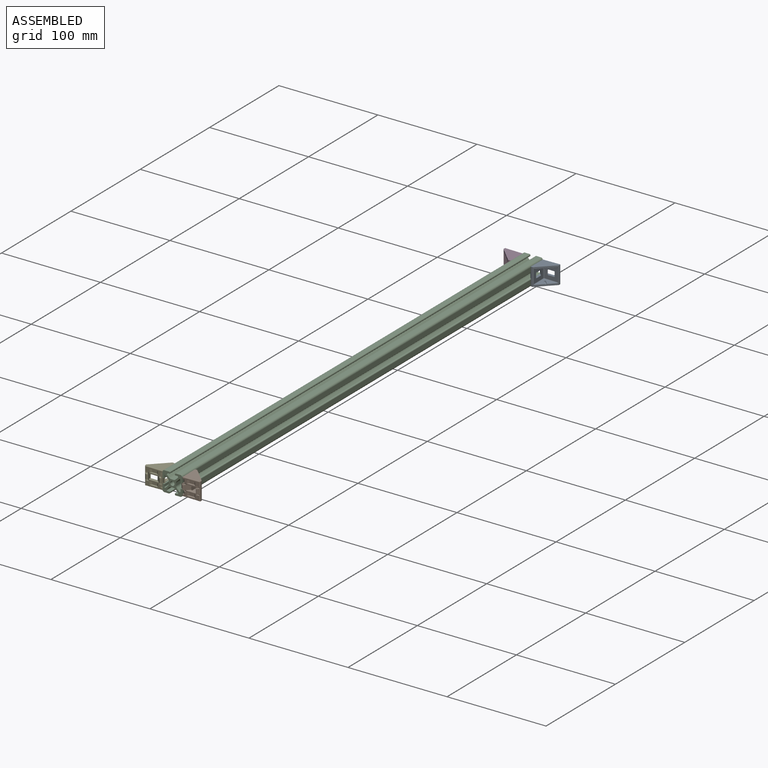
[diagram: assembled view]
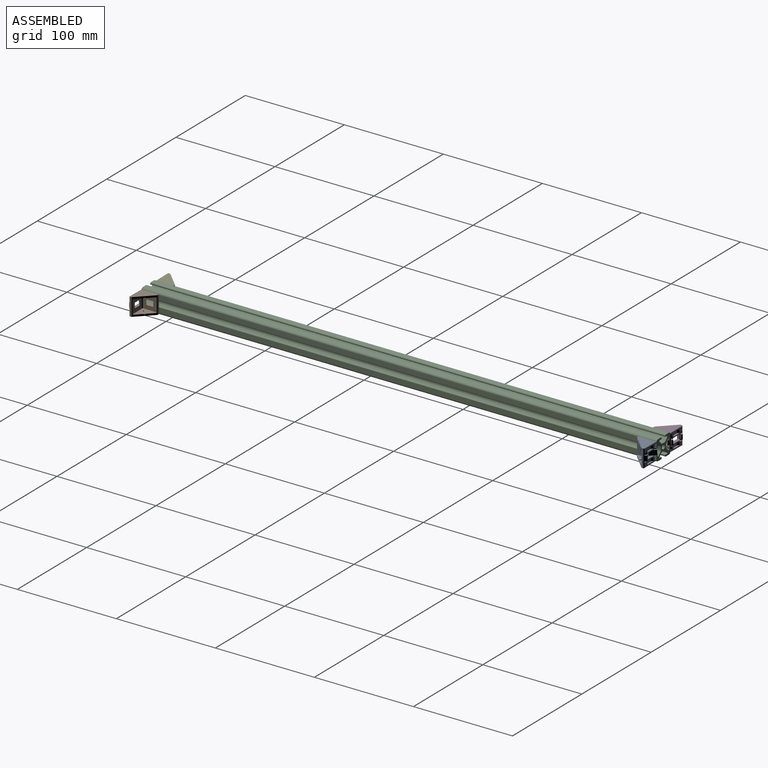
[diagram: assembled view, second angle]
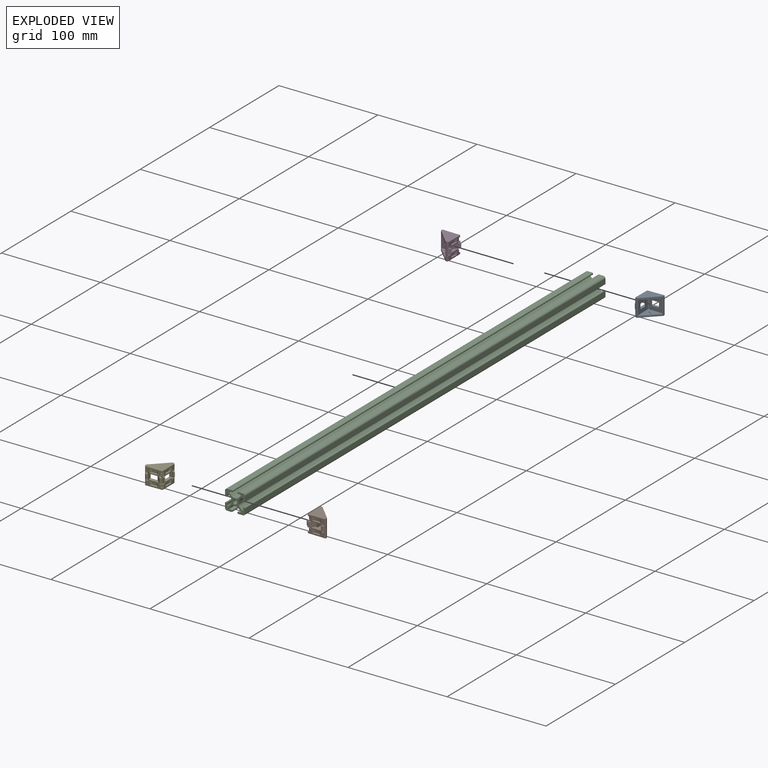
[diagram: exploded view]
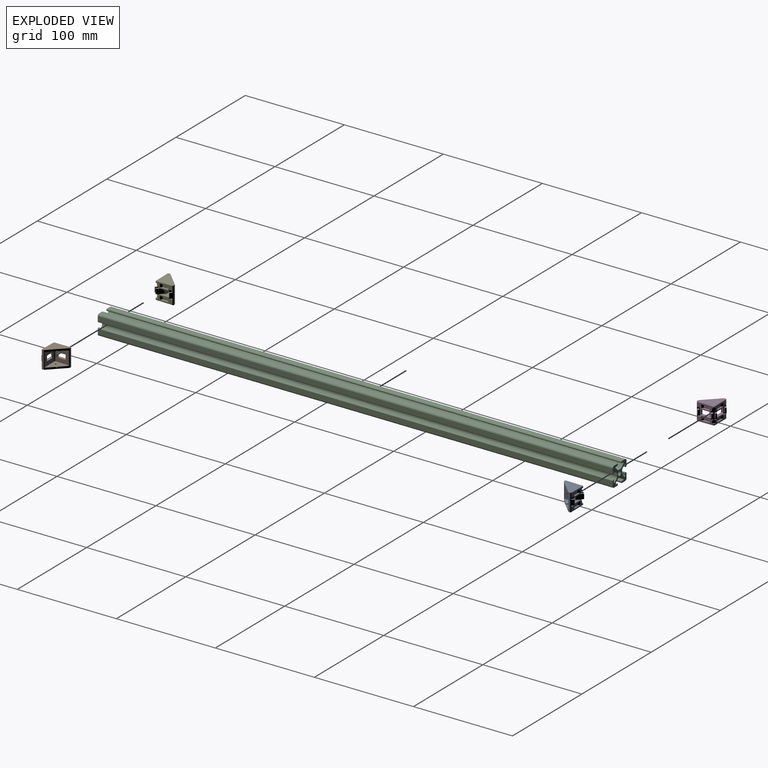
[diagram: exploded view, second angle]
ASSEMBLY  parts=5 mates=4
PART A: 174 faces, bbox 20x20x18.2 mm
  f0: cylinder r=0.5mm len=0.69mm, axis (0,0,1), area 0.3mm2, adj f16,f26,f91,f99,f100
  f1: cylinder r=0.5mm len=0.69mm, axis (0,0,1), area 0.3mm2, adj f16,f27,f92,f93,f96
  f2: bspline ~0.71x0.64mm, area 0.5mm2, adj f27,f149,f157,f158
  f3: cylinder r=0.59mm len=0.99mm, axis (0,0,1), area 1.1mm2, adj f26,f97,f99,f100
  f4: cylinder r=0.59mm len=0.99mm, axis (0,0,1), area 1.1mm2, adj f27,f93,f95,f96
  f5: cylinder r=0.3mm len=6.75mm, axis (0.71,0.71,0), area 4mm2, adj f16,f26,f98,f154
  f6: cylinder r=0.3mm len=6.75mm, axis (0.71,0.71,0), area 4mm2, adj f16,f27,f94,f159
  f7: plane 17.17x17.13mm, normal (0,-1,0), area 103.9mm2, adj f10,f12,f13,f21,f33,f34,f35,f36
  f8: plane 17.17x17.13mm, normal (1,0,0), area 103.9mm2, adj f9,f11,f12,f13,f21,f29,f30,f31
  f9: plane 17.96x0.68mm, normal (0.71,0.71,0), area 17mm2, adj f8,f22,f23,f24,f25,f46,f169,f172
  f10: plane 17.96x0.68mm, normal (-0.71,-0.71,0), area 17mm2, adj f7,f19,f20,f24,f25,f50,f168,f171
  f11: plane 8x1.49mm, normal (0.71,-0.71,0), area 8.3mm2, adj f8,f42,f43,f44,f57,f60,f61
  f12: plane 2.95x2.12mm, normal (0.71,-0.71,0), area 8.8mm2, adj f7,f8,f38,f44
  f13: plane 1.2x0.42mm, normal (0.71,-0.71,0), area 0.7mm2, adj f7,f8,f37,f168,f169,f170
  f14: plane 13.9x13.74mm, normal (0,1,0), area 137.6mm2, adj f16,f32,f33,f34,f35,f149,f153,f154
  f15: plane 13.9x13.74mm, normal (-1,0,0), area 137.6mm2, adj f16,f28,f29,f30,f31,f149,f150,f151
  f16: plane 18.1x15mm, normal (-0.71,0.71,0), area 79.3mm2, adj f0,f1,f5,f6,f14,f15,f17,f18
  f17: cylinder r=1mm len=18mm, axis (0,0,-1), area 14.1mm2, adj f16,f23,f24,f25
  f18: cylinder r=1mm len=18mm, axis (0,0,-1), area 14.1mm2, adj f16,f19,f24,f25
  f19: plane 17.99x1.42mm, normal (-1,0,0), area 25.4mm2, adj f10,f18,f24,f25
  f20: plane 5x2mm, normal (-0.67,-0.74,0), area 13.1mm2, adj f10,f68,f69,f70
  f21: plane 1.2x0.42mm, normal (0.71,-0.71,0), area 0.7mm2, adj f7,f8,f38,f171,f172,f173
  f22: plane 5x2mm, normal (0.74,0.67,0), area 13.1mm2, adj f9,f54,f55,f56
  f23: plane 17.99x1.42mm, normal (0,1,0), area 25.4mm2, adj f9,f17,f24,f25
  f24: plane 17.51x17.51mm, normal (0.01,-0.01,1), area 186.4mm2, adj f9,f10,f16,f17,f18,f19,f23,f171
  f25: plane 17.51x17.51mm, normal (0.01,-0.01,-1), area 186.4mm2, adj f9,f10,f16,f17,f18,f19,f23,f168
  f26: plane 13.12x13.12mm, normal (-0.01,0.01,1), area 78.8mm2, adj f0,f3,f5,f91,f97,f98,f99,f151
  f27: plane 13.11x13.11mm, normal (-0.01,0.01,-1), area 78.8mm2, adj f1,f2,f4,f6,f92,f93,f94,f95
  f28: plane 4.47x2.63mm, normal (0,-1,0), area 11.4mm2, adj f15,f45,f166,f167
  f29: plane 4.55x3.33mm, normal (0.74,0.67,0), area 19.7mm2, adj f8,f15,f164,f165
  f30: plane 9.11x3mm, normal (0.05,0,1), area 22.3mm2, adj f8,f15,f165,f167
  f31: plane 9.11x3mm, normal (0.05,0,-1), area 22.3mm2, adj f8,f15,f164,f166
  f32: plane 4.47x2.63mm, normal (1,0,0), area 11.4mm2, adj f14,f49,f161,f163
  f33: plane 4.55x3.33mm, normal (-0.67,-0.74,0), area 19.7mm2, adj f7,f14,f160,f162
  f34: plane 9.11x3mm, normal (0,-0.05,1), area 22.3mm2, adj f7,f14,f162,f163
  f35: plane 9.11x3mm, normal (0,-0.05,-1), area 22.3mm2, adj f7,f14,f160,f161
  f36: plane 2.95x2.12mm, normal (0.71,-0.71,0), area 8.8mm2, adj f7,f8,f37,f43
  f37: plane 2.12x2.12mm, normal (0.04,-0.04,1), area 2.2mm2, adj f7,f8,f13,f36
  f38: plane 2.12x2.12mm, normal (0.04,-0.04,-1), area 2.2mm2, adj f7,f8,f12,f21
  f39: plane 8x1.49mm, normal (0.71,-0.71,0), area 8.3mm2, adj f7,f40,f43,f44,f62,f65,f66
  f40: plane 8.08x0.6mm, normal (-0.67,-0.74,0), area 6.4mm2, adj f39,f41,f43,f44
  f41: plane 8.08x0.51mm, normal (0.71,-0.71,0), area 5.8mm2, adj f40,f42,f43,f44
  f42: plane 8.08x0.6mm, normal (0.74,0.67,0), area 6.4mm2, adj f11,f41,f43,f44
  f43: plane 3.54x3.54mm, normal (0.04,-0.04,1), area 3.4mm2, adj f7,f8,f11,f36,f39,f40,f41,f42
  f44: plane 3.54x3.54mm, normal (0.04,-0.04,-1), area 3.4mm2, adj f7,f8,f11,f12,f39,f40,f41,f42
  f45: plane 8.28x1.96mm, normal (0.74,0.67,0), area 18.6mm2, adj f8,f28,f46,f47,f48,f166,f167
  f46: plane 8x1.77mm, normal (0.71,-0.71,0), area 11.5mm2, adj f9,f45,f47,f48,f53,f55,f56
  f47: plane 3.73x1.77mm, normal (0.04,-0.04,1), area 3.3mm2, adj f8,f45,f46
  f48: plane 3.73x1.77mm, normal (0.04,-0.04,-1), area 3.3mm2, adj f8,f45,f46
  f49: plane 8.28x1.96mm, normal (-0.67,-0.74,0), area 18.6mm2, adj f7,f32,f50,f51,f52,f161,f163
  f50: plane 8x1.77mm, normal (0.71,-0.71,0), area 11.5mm2, adj f10,f49,f51,f52,f67,f69,f70
  f51: plane 3.73x1.77mm, normal (0.04,-0.04,1), area 3.3mm2, adj f7,f49,f50
  f52: plane 3.73x1.77mm, normal (0.04,-0.04,-1), area 3.3mm2, adj f7,f49,f50
  f53: plane 5x2mm, normal (-0.67,-0.74,0), area 13.1mm2, adj f46,f54,f55,f56
  f54: plane 4.72x1mm, normal (0.71,-0.71,0), area 6.7mm2, adj f22,f53,f55,f56
  f55: plane 3x3mm, normal (0.04,-0.04,1), area 4.2mm2, adj f22,f46,f53,f54
  f56: plane 3x3mm, normal (0.04,-0.04,-1), area 4.2mm2, adj f22,f46,f53,f54
  f57: plane 5x2mm, normal (-0.67,-0.74,0), area 13.1mm2, adj f11,f58,f60,f61
  f58: plane 4.72x1mm, normal (0.71,-0.71,0), area 6.7mm2, adj f57,f59,f60,f61
  f59: plane 5x2mm, normal (0.74,0.67,0), area 13.1mm2, adj f8,f58,f60,f61
  f60: plane 3x3mm, normal (0.04,-0.04,1), area 4.2mm2, adj f11,f57,f58,f59
  f61: plane 3x3mm, normal (0.04,-0.04,-1), area 4.2mm2, adj f11,f57,f58,f59
  f62: plane 5x2mm, normal (0.74,0.67,0), area 13.1mm2, adj f39,f64,f65,f66
  f63: plane 5x2mm, normal (-0.67,-0.74,0), area 13.1mm2, adj f7,f64,f65,f66
  f64: plane 4.72x1mm, normal (0.71,-0.71,0), area 6.7mm2, adj f62,f63,f65,f66
  f65: plane 3x3mm, normal (0.04,-0.04,1), area 4.2mm2, adj f39,f62,f63,f64
  f66: plane 3x3mm, normal (0.04,-0.04,-1), area 4.2mm2, adj f39,f62,f63,f64
  f67: plane 5x2mm, normal (0.74,0.67,0), area 13.1mm2, adj f50,f68,f69,f70
  f68: plane 4.72x1mm, normal (0.71,-0.71,0), area 6.7mm2, adj f20,f67,f69,f70
  f69: plane 3x3mm, normal (0.04,-0.04,1), area 4.2mm2, adj f20,f50,f67,f68
  f70: plane 3x3mm, normal (0.04,-0.04,-1), area 4.2mm2, adj f20,f50,f67,f68
  f71: plane 2.92x1.58mm, normal (0.74,0.67,0), area 6.1mm2, adj f8,f109,f111,f147
  f72: plane 5x2.77mm, normal (1,0,0), area 13.9mm2, adj f142,f143,f146,f147
  f73: plane 2.92x1.41mm, normal (0.71,-0.71,0), area 5.7mm2, adj f8,f110,f112,f142
  f74: plane 7.56x1.22mm, normal (0.05,0,1), area 7.6mm2, adj f8,f109,f110,f143
  f75: plane 7.56x1.22mm, normal (0.05,0,-1), area 7.6mm2, adj f8,f111,f112,f146
  f76: plane 2.92x1.58mm, normal (-0.67,-0.74,0), area 6.1mm2, adj f7,f115,f116,f126
  f77: plane 2.92x1.41mm, normal (0.71,-0.71,0), area 5.7mm2, adj f7,f113,f114,f131
  f78: plane 5x2.77mm, normal (0,-1,0), area 13.9mm2, adj f126,f127,f130,f131
  f79: plane 7.56x1.22mm, normal (0,-0.05,1), area 7.6mm2, adj f7,f113,f116,f127
  f80: plane 7.56x1.22mm, normal (0,-0.05,-1), area 7.6mm2, adj f7,f114,f115,f130
  f81: plane 2.92x1.41mm, normal (0.71,-0.71,0), area 5.7mm2, adj f8,f101,f103,f135
  f82: plane 5x2.77mm, normal (1,0,0), area 13.9mm2, adj f134,f135,f138,f139
  f83: plane 2.92x1.58mm, normal (0.74,0.67,0), area 6.1mm2, adj f8,f102,f104,f138
  f84: plane 7.56x1.22mm, normal (0.05,0,-1), area 7.6mm2, adj f8,f103,f104,f134
  f85: plane 7.56x1.22mm, normal (0.05,0,1), area 7.6mm2, adj f8,f101,f102,f139
  f86: plane 2.92x1.58mm, normal (-0.67,-0.74,0), area 6.1mm2, adj f7,f105,f107,f119
  f87: plane 5x2.77mm, normal (0,-1,0), area 13.9mm2, adj f118,f119,f122,f123
  f88: plane 2.92x1.41mm, normal (0.71,-0.71,0), area 5.7mm2, adj f7,f106,f108,f122
  f89: plane 7.56x1.22mm, normal (0,-0.05,-1), area 7.6mm2, adj f7,f107,f108,f118
  f90: plane 7.56x1.22mm, normal (0,-0.05,1), area 7.6mm2, adj f7,f105,f106,f123
  f91: cylinder r=0.3mm len=6.75mm, axis (0.71,0.71,0), area 4.1mm2, adj f0,f16,f26,f150
  f92: cylinder r=0.3mm len=6.75mm, axis (0.71,0.71,0), area 4.1mm2, adj f1,f16,f27,f155
  f93: plane 3.4x3.17mm, normal (-0.73,-0.68,0), area 2.6mm2, adj f1,f4,f27,f96
  f94: cylinder r=0.5mm len=0.69mm, axis (0,0,1), area 0.3mm2, adj f6,f16,f27,f95,f96
  f95: plane 3.4x3.17mm, normal (0.68,0.73,0), area 2.6mm2, adj f4,f27,f94,f96
  f96: plane 5.09x5.09mm, normal (0,0,-1), area 7.6mm2, adj f1,f4,f16,f93,f94,f95
  f97: plane 3.4x3.17mm, normal (0.68,0.73,0), area 2.6mm2, adj f3,f26,f98,f100
  f98: cylinder r=0.5mm len=0.69mm, axis (0,0,1), area 0.3mm2, adj f5,f16,f26,f97,f100
  f99: plane 3.4x3.17mm, normal (-0.73,-0.68,0), area 2.6mm2, adj f0,f3,f26,f100
  f100: plane 5.09x5.09mm, normal (0,0,1), area 7.6mm2, adj f0,f3,f16,f97,f98,f99
  f101: cylinder r=0.3mm len=1.62mm, axis (0.71,0.71,-0.04), area 0.9mm2, adj f8,f81,f85,f137
  f102: cylinder r=0.3mm len=1.78mm, axis (-0.67,0.74,0.04), area 0.9mm2, adj f8,f83,f85,f140
  f103: cylinder r=0.3mm len=1.62mm, axis (0.71,0.71,0.04), area 0.9mm2, adj f8,f81,f84,f133
  f104: cylinder r=0.3mm len=1.78mm, axis (-0.67,0.74,-0.04), area 0.9mm2, adj f8,f83,f84,f136
  f105: cylinder r=0.3mm len=1.78mm, axis (0.74,-0.67,-0.04), area 0.9mm2, adj f7,f86,f90,f121
  f106: cylinder r=0.3mm len=1.62mm, axis (0.71,0.71,0.04), area 0.9mm2, adj f7,f88,f90,f124
  f107: cylinder r=0.3mm len=1.78mm, axis (0.74,-0.67,0.04), area 0.9mm2, adj f7,f86,f89,f117
  f108: cylinder r=0.3mm len=1.62mm, axis (0.71,0.71,-0.04), area 0.9mm2, adj f7,f88,f89,f120
  f109: cylinder r=0.3mm len=1.78mm, axis (-0.67,0.74,0.04), area 0.9mm2, adj f8,f71,f74,f145
  f110: cylinder r=0.3mm len=1.62mm, axis (-0.71,-0.71,0.04), area 0.9mm2, adj f8,f73,f74,f141
  f111: cylinder r=0.3mm len=1.78mm, axis (-0.67,0.74,-0.04), area 0.9mm2, adj f8,f71,f75,f148
  f112: cylinder r=0.3mm len=1.62mm, axis (-0.71,-0.71,-0.04), area 0.9mm2, adj f8,f73,f75,f144
  f113: cylinder r=0.3mm len=1.62mm, axis (-0.71,-0.71,-0.04), area 0.9mm2, adj f7,f77,f79,f129
  f114: cylinder r=0.3mm len=1.62mm, axis (-0.71,-0.71,0.04), area 0.9mm2, adj f7,f77,f80,f132
  f115: cylinder r=0.3mm len=1.78mm, axis (0.74,-0.67,0.04), area 0.9mm2, adj f7,f76,f80,f128
  f116: cylinder r=0.3mm len=1.78mm, axis (0.74,-0.67,-0.04), area 0.9mm2, adj f7,f76,f79,f125
  f117: sphere r=0.3mm, area 0mm2, adj f107,f118,f119
  f118: cylinder r=0.3mm len=5mm, axis (1,0,0), area 2.3mm2, adj f87,f89,f117,f120
  f119: cylinder r=0.3mm len=2.77mm, axis (0,0,1), area 0.6mm2, adj f86,f87,f117,f121
  f120: sphere r=0.3mm, area 0mm2, adj f108,f118,f122
  f121: sphere r=0.3mm, area 0mm2, adj f105,f119,f123
  f122: cylinder r=0.3mm len=2.77mm, axis (0,0,1), area 0.7mm2, adj f87,f88,f120,f124
  f123: cylinder r=0.3mm len=5mm, axis (1,0,0), area 2.3mm2, adj f87,f90,f121,f124
  f124: sphere r=0.3mm, area 0mm2, adj f106,f122,f123
  f125: sphere r=0.3mm, area 0mm2, adj f116,f126,f127
  f126: cylinder r=0.3mm len=2.77mm, axis (0,0,1), area 0.6mm2, adj f76,f78,f125,f128
  f127: cylinder r=0.3mm len=5mm, axis (-1,0,0), area 2.3mm2, adj f78,f79,f125,f129
  f128: sphere r=0.3mm, area 0mm2, adj f115,f126,f130
  f129: sphere r=0.3mm, area 0mm2, adj f113,f127,f131
  f130: cylinder r=0.3mm len=5mm, axis (-1,0,0), area 2.3mm2, adj f78,f80,f128,f132
  f131: cylinder r=0.3mm len=2.77mm, axis (0,0,-1), area 0.7mm2, adj f77,f78,f129,f132
  f132: sphere r=0.3mm, area 0mm2, adj f114,f130,f131
  f133: sphere r=0.3mm, area 0mm2, adj f103,f134,f135
  f134: cylinder r=0.3mm len=5mm, axis (0,1,0), area 2.3mm2, adj f82,f84,f133,f136
  f135: cylinder r=0.3mm len=2.77mm, axis (0,0,1), area 0.7mm2, adj f81,f82,f133,f137
  f136: sphere r=0.3mm, area 0mm2, adj f104,f134,f138
  f137: sphere r=0.3mm, area 0mm2, adj f101,f135,f139
  f138: cylinder r=0.3mm len=2.77mm, axis (0,0,1), area 0.6mm2, adj f82,f83,f136,f140
  f139: cylinder r=0.3mm len=5mm, axis (0,1,0), area 2.3mm2, adj f82,f85,f137,f140
  f140: sphere r=0.3mm, area 0mm2, adj f102,f138,f139
  f141: sphere r=0.3mm, area 0mm2, adj f110,f142,f143
  f142: cylinder r=0.3mm len=2.77mm, axis (0,0,-1), area 0.7mm2, adj f72,f73,f141,f144
  f143: cylinder r=0.3mm len=5mm, axis (0,-1,0), area 2.3mm2, adj f72,f74,f141,f145
  f144: sphere r=0.3mm, area 0mm2, adj f112,f142,f146
  f145: sphere r=0.3mm, area 0mm2, adj f109,f143,f147
  f146: cylinder r=0.3mm len=5mm, axis (0,-1,0), area 2.3mm2, adj f72,f75,f144,f148
  f147: cylinder r=0.3mm len=2.77mm, axis (0,0,1), area 0.6mm2, adj f71,f72,f145,f148
  f148: sphere r=0.3mm, area 0mm2, adj f111,f146,f147
  f149: cylinder r=1mm len=12.68mm, axis (0,0,-1), area 19.9mm2, adj f2,f14,f15,f152,f157
  f150: bspline ~1.13x0.81mm, area 0.6mm2, adj f15,f16,f91,f151
  f151: cylinder r=0.5mm len=12.61mm, axis (0,-1,0.01), area 9.8mm2, adj f15,f26,f150,f152
  f152: bspline ~1x1mm, area 1mm2, adj f26,f149,f151,f153
  f153: cylinder r=0.5mm len=12.61mm, axis (-1,0,-0.01), area 9.8mm2, adj f14,f26,f152,f154
  f154: bspline ~1.13x0.81mm, area 0.6mm2, adj f5,f14,f16,f153
  f155: bspline ~1.13x0.81mm, area 0.6mm2, adj f15,f16,f92,f156
  f156: cylinder r=0.5mm len=12.61mm, axis (0,1,0.01), area 9.8mm2, adj f15,f27,f155,f157
  f157: bspline ~0.71x0.64mm, area 0.5mm2, adj f2,f27,f149,f156
  f158: cylinder r=0.5mm len=12.61mm, axis (1,0,-0.01), area 9.8mm2, adj f2,f14,f27,f159
  f159: bspline ~1.13x0.81mm, area 0.6mm2, adj f6,f14,f16,f158
  f160: cylinder r=0.5mm len=4.05mm, axis (0.74,-0.67,0.04), area 3.4mm2, adj f7,f14,f33,f35
  f161: cylinder r=0.5mm len=3.05mm, axis (0,-1,0.05), area 2.2mm2, adj f7,f14,f32,f35,f49
  f162: cylinder r=0.5mm len=4.05mm, axis (0.74,-0.67,-0.04), area 3.4mm2, adj f7,f14,f33,f34
  f163: cylinder r=0.5mm len=3.05mm, axis (0,-1,-0.05), area 2.2mm2, adj f7,f14,f32,f34,f49
  f164: cylinder r=0.5mm len=4.05mm, axis (-0.67,0.74,-0.04), area 3.4mm2, adj f8,f15,f29,f31
  f165: cylinder r=0.5mm len=4.05mm, axis (-0.67,0.74,0.04), area 3.4mm2, adj f8,f15,f29,f30
  f166: cylinder r=0.5mm len=3.05mm, axis (-1,0,-0.05), area 2.2mm2, adj f8,f15,f28,f31,f45
  f167: cylinder r=0.5mm len=3.05mm, axis (-1,0,0.05), area 2.2mm2, adj f8,f15,f28,f30,f45
  f168: cylinder r=0.5mm len=17.41mm, axis (-1,0,-0.01), area 13.3mm2, adj f7,f10,f13,f25,f170
  f169: cylinder r=0.5mm len=17.41mm, axis (0,-1,0.01), area 13.3mm2, adj f8,f9,f13,f25,f170
  f170: cylinder r=0.5mm len=0.77mm, axis (-0.71,-0.71,0), area 0.3mm2, adj f13,f25,f168,f169
  f171: cylinder r=0.5mm len=17.41mm, axis (-1,0,0.01), area 13.3mm2, adj f7,f10,f21,f24,f173
  f172: cylinder r=0.5mm len=17.41mm, axis (0,-1,-0.01), area 13.3mm2, adj f8,f9,f21,f24,f173
  f173: cylinder r=0.5mm len=0.77mm, axis (-0.71,-0.71,0), area 0.3mm2, adj f21,f24,f171,f172
PART B: same geometry as A
PART C: 75 faces, bbox 20x520x20 mm
  f0: plane 520x0.7mm, normal (0,0,1), area 364mm2, adj f22,f23,f73,f74
  f1: plane 520x4.63mm, normal (1,0,0), area 2405mm2, adj f23,f24,f73,f74
  f2: plane 520x4.63mm, normal (0,0,-1), area 2405mm2, adj f24,f25,f73,f74
  f3: plane 520x0.7mm, normal (-1,0,0), area 364mm2, adj f25,f26,f73,f74
  f4: plane 520x4.63mm, normal (0,0,-1), area 2405mm2, adj f37,f38,f73,f74
  f5: plane 520x4.63mm, normal (-1,0,0), area 2405mm2, adj f38,f39,f73,f74
  f6: plane 520x0.7mm, normal (0,0,1), area 364mm2, adj f39,f40,f73,f74
  f7: plane 520x0.7mm, normal (0,0,-1), area 364mm2, adj f50,f51,f73,f74
  f8: plane 520x4.63mm, normal (-1,0,0), area 2405mm2, adj f51,f52,f73,f74
  f9: plane 520x4.63mm, normal (0,0,1), area 2405mm2, adj f52,f53,f73,f74
  f10: plane 520x0.7mm, normal (-1,0,0), area 364mm2, adj f64,f65,f73,f74
  f11: plane 520x4.63mm, normal (0,0,1), area 2405mm2, adj f65,f66,f73,f74
  f12: plane 520x4.63mm, normal (1,0,0), area 2405mm2, adj f66,f67,f73,f74
  f13: plane 520x0.7mm, normal (0,0,-1), area 364mm2, adj f67,f68,f73,f74
  f14: plane 520x0.7mm, normal (1,0,0), area 364mm2, adj f36,f37,f73,f74
  f15: plane 520x0.7mm, normal (1,0,0), area 364mm2, adj f53,f54,f73,f74
  f16: cylinder r=2.15mm len=520mm, axis (0,-1,0), area 7024.6mm2, adj f73,f74
  f17: plane 520x2.27mm, normal (1,0,0), area 1179.9mm2, adj f18,f72,f73,f74
  f18: cylinder r=3mm len=520mm, axis (0,-1,0), area 1225.2mm2, adj f17,f19,f73,f74
  f19: plane 520x2.34mm, normal (0.71,0,0.71), area 1720.7mm2, adj f18,f20,f73,f74
  f20: cylinder r=0.78mm len=520mm, axis (0,-1,0), area 955.7mm2, adj f19,f21,f73,f74
  f21: plane 520x2.17mm, normal (-1,0,0), area 1127.9mm2, adj f20,f22,f73,f74
  f22: cylinder r=0.3mm len=520mm, axis (0,-1,0), area 245mm2, adj f0,f21,f73,f74
  f23: cylinder r=0.8mm len=520mm, axis (0,-1,0), area 653.5mm2, adj f0,f1,f73,f74
  f24: cylinder r=2mm len=520mm, axis (0,-1,0), area 1633.6mm2, adj f1,f2,f73,f74
  f25: cylinder r=0.8mm len=520mm, axis (0,-1,0), area 653.5mm2, adj f2,f3,f73,f74
  f26: cylinder r=0.3mm len=520mm, axis (0,-1,0), area 245mm2, adj f3,f27,f73,f74
  f27: plane 520x2.17mm, normal (0,0,1), area 1127.9mm2, adj f26,f28,f73,f74
  f28: cylinder r=0.78mm len=520mm, axis (0,-1,0), area 955.7mm2, adj f27,f29,f73,f74
  f29: plane 520x2.34mm, normal (-0.71,0,-0.71), area 1720.7mm2, adj f28,f30,f73,f74
  f30: cylinder r=3mm len=520mm, axis (0,-1,0), area 1225.2mm2, adj f29,f31,f73,f74
  f31: plane 520x2.27mm, normal (0,0,-1), area 1179.9mm2, adj f30,f32,f73,f74
  f32: cylinder r=3mm len=520mm, axis (0,-1,0), area 1225.2mm2, adj f31,f33,f73,f74
  f33: plane 520x2.34mm, normal (0.71,0,-0.71), area 1720.7mm2, adj f32,f34,f73,f74
  f34: cylinder r=0.78mm len=520mm, axis (0,-1,0), area 955.7mm2, adj f33,f35,f73,f74
  f35: plane 520x2.17mm, normal (0,0,1), area 1127.9mm2, adj f34,f36,f73,f74
  f36: cylinder r=0.3mm len=520mm, axis (0,-1,0), area 245mm2, adj f14,f35,f73,f74
  f37: cylinder r=0.8mm len=520mm, axis (0,-1,0), area 653.5mm2, adj f4,f14,f73,f74
  f38: cylinder r=2mm len=520mm, axis (0,-1,0), area 1633.6mm2, adj f4,f5,f73,f74
  f39: cylinder r=0.8mm len=520mm, axis (0,-1,0), area 653.5mm2, adj f5,f6,f73,f74
  f40: cylinder r=0.3mm len=520mm, axis (0,-1,0), area 245mm2, adj f6,f41,f73,f74
  f41: plane 520x2.17mm, normal (1,0,0), area 1127.9mm2, adj f40,f42,f73,f74
  f42: cylinder r=0.78mm len=520mm, axis (0,-1,0), area 955.7mm2, adj f41,f43,f73,f74
  f43: plane 520x2.34mm, normal (-0.71,0,0.71), area 1720.7mm2, adj f42,f44,f73,f74
  f44: cylinder r=3mm len=520mm, axis (0,-1,0), area 1225.2mm2, adj f43,f45,f73,f74
  f45: plane 520x2.27mm, normal (-1,0,0), area 1179.9mm2, adj f44,f46,f73,f74
  f46: cylinder r=3mm len=520mm, axis (0,-1,0), area 1225.2mm2, adj f45,f47,f73,f74
  f47: plane 520x2.34mm, normal (-0.71,0,-0.71), area 1720.7mm2, adj f46,f48,f73,f74
  f48: cylinder r=0.78mm len=520mm, axis (0,-1,0), area 955.7mm2, adj f47,f49,f73,f74
  f49: plane 520x2.17mm, normal (1,0,0), area 1127.9mm2, adj f48,f50,f73,f74
  f50: cylinder r=0.3mm len=520mm, axis (0,-1,0), area 245mm2, adj f7,f49,f73,f74
  f51: cylinder r=0.8mm len=520mm, axis (0,-1,0), area 653.5mm2, adj f7,f8,f73,f74
  f52: cylinder r=2mm len=520mm, axis (0,-1,0), area 1633.6mm2, adj f8,f9,f73,f74
  f53: cylinder r=0.8mm len=520mm, axis (0,-1,0), area 653.5mm2, adj f9,f15,f73,f74
  f54: cylinder r=0.3mm len=520mm, axis (0,-1,0), area 245mm2, adj f15,f55,f73,f74
  f55: plane 520x2.17mm, normal (0,0,-1), area 1127.9mm2, adj f54,f56,f73,f74
  f56: cylinder r=0.78mm len=520mm, axis (0,-1,0), area 955.7mm2, adj f55,f57,f73,f74
  f57: plane 520x2.34mm, normal (0.71,0,0.71), area 1720.7mm2, adj f56,f58,f73,f74
  f58: cylinder r=3mm len=520mm, axis (0,-1,0), area 1225.2mm2, adj f57,f59,f73,f74
  f59: plane 520x2.27mm, normal (0,0,1), area 1179.9mm2, adj f58,f60,f73,f74
  f60: cylinder r=3mm len=520mm, axis (0,-1,0), area 1225.2mm2, adj f59,f61,f73,f74
  f61: plane 520x2.34mm, normal (-0.71,0,0.71), area 1720.7mm2, adj f60,f62,f73,f74
  f62: cylinder r=0.78mm len=520mm, axis (0,-1,0), area 955.7mm2, adj f61,f63,f73,f74
  f63: plane 520x2.17mm, normal (0,0,-1), area 1127.9mm2, adj f62,f64,f73,f74
  f64: cylinder r=0.3mm len=520mm, axis (0,-1,0), area 245mm2, adj f10,f63,f73,f74
  f65: cylinder r=0.8mm len=520mm, axis (0,-1,0), area 653.5mm2, adj f10,f11,f73,f74
  f66: cylinder r=2mm len=520mm, axis (0,-1,0), area 1633.6mm2, adj f11,f12,f73,f74
  f67: cylinder r=0.8mm len=520mm, axis (0,-1,0), area 653.5mm2, adj f12,f13,f73,f74
  f68: cylinder r=0.3mm len=520mm, axis (0,-1,0), area 245mm2, adj f13,f69,f73,f74
  f69: plane 520x2.17mm, normal (-1,0,0), area 1127.9mm2, adj f68,f70,f73,f74
  f70: cylinder r=0.78mm len=520mm, axis (0,-1,0), area 955.7mm2, adj f69,f71,f73,f74
  f71: plane 520x2.34mm, normal (0.71,0,-0.71), area 1720.7mm2, adj f70,f72,f73,f74
  f72: cylinder r=3mm len=520mm, axis (0,-1,0), area 1225.2mm2, adj f17,f71,f73,f74
  f73: plane 20x20mm, normal (0,1,0), area 181.9mm2, adj f0,f1,f2,f3,f4,f5,f6,f7
  f74: plane 20x20mm, normal (0,-1,0), area 181.9mm2, adj f0,f1,f2,f3,f4,f5,f6,f7
PART D: same geometry as A
PART E: same geometry as A
PLACE A rot(axis=(0,0,1),180deg) t=(6.63,0.02,-10.01)mm
PLACE B rot(axis=(0,0,-1),90deg) t=(6.63,-520.02,-10.01)mm
PLACE C at identity
PLACE D rot(axis=(0,0,1),90deg) t=(-13.37,0.02,-9.99)mm
PLACE E t=(-13.37,-520.02,-10.01)mm
MATE fastened D.f7 <-> C.f5  axis (1,0,0) through (-13.37,-0.4,-18.25)mm
MATE fastened A.f8 <-> C.f12  axis (-1,0,0) through (6.63,-0.4,-1.75)mm
MATE fastened B.f7 <-> C.f12  axis (-1,0,0) through (6.63,-519.6,-1.75)mm
MATE fastened E.f8 <-> C.f8  axis (1,0,0) through (-13.37,-519.6,-1.75)mm
